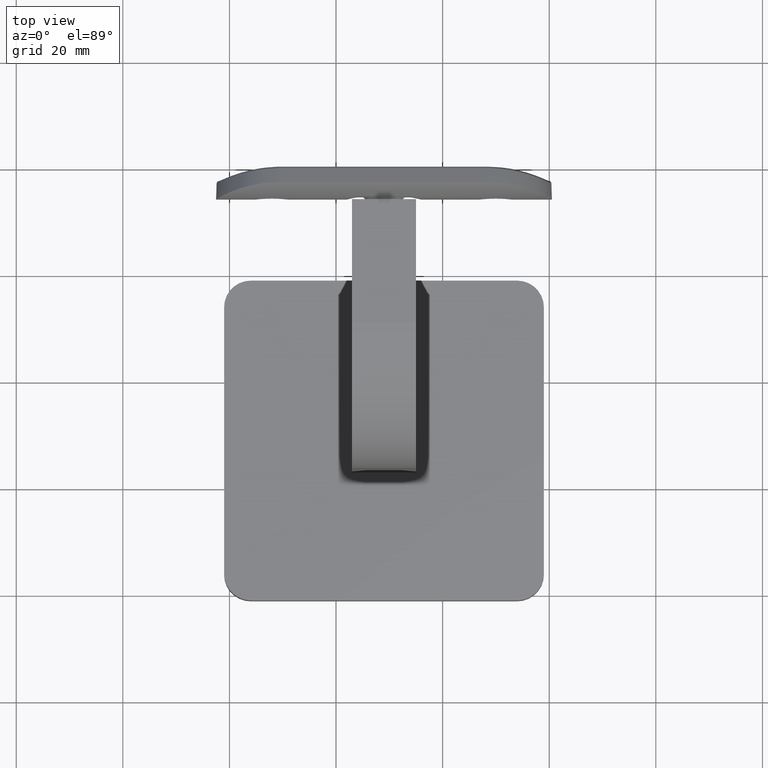
[diagram: clean part render]
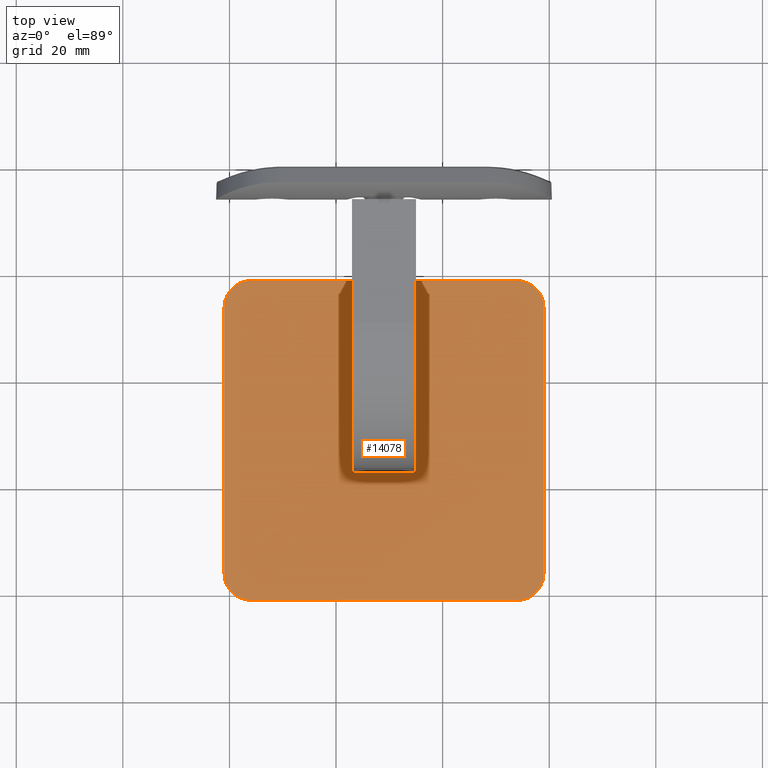
[diagram: same view with one face highlighted and labeled with its STEP entity id]
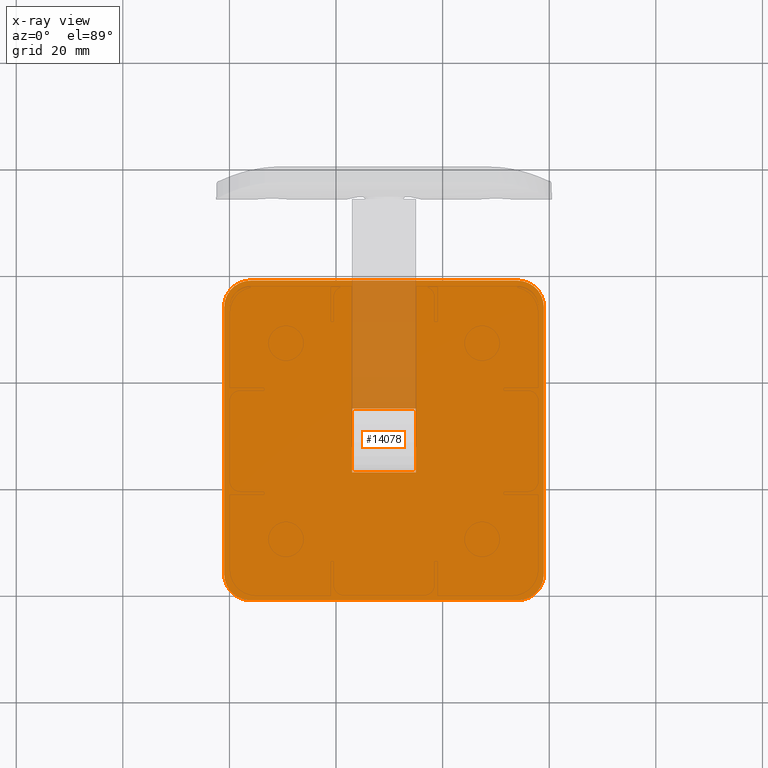
[diagram: x-ray of the same camera — body ghosted, the highlighted face saturated]
A machine part, top view. The second image highlights one B-rep face of the part: STEP entity #14078.
The next image is the same camera in x-ray: the body ghosted, the highlighted face saturated — about 8% of this face is hidden behind the body in this view.
In plain terms, the highlighted planar face has unit normal (0, 0, 1).
Its self-contained STEP definition (entity closure, byte-faithful):
#172 = DIRECTION ( 'NONE',  ( 0.000000000000000000, 1.000000000000000000, 0.000000000000000000 ) ) ;
#190 = VERTEX_POINT ( 'NONE', #6938 ) ;
#329 = VERTEX_POINT ( 'NONE', #8734 ) ;
#729 = CARTESIAN_POINT ( 'NONE',  ( 5.000000000000035527, 0.000000000000000000, 11.50000000000000000 ) ) ;
#973 = EDGE_CURVE ( 'NONE', #15392, #190, #7209, .T. ) ;
#1012 = CARTESIAN_POINT ( 'NONE',  ( 60.00000000000000000, 54.99999999999996447, 11.50000000000000000 ) ) ;
#1373 = VERTEX_POINT ( 'NONE', #13045 ) ;
#1382 = DIRECTION ( 'NONE',  ( -1.000000000000000000, -0.000000000000000000, -0.000000000000000000 ) ) ;
#1583 = VERTEX_POINT ( 'NONE', #5884 ) ;
#1748 = VERTEX_POINT ( 'NONE', #13150 ) ;
#1775 = ORIENTED_EDGE ( 'NONE', *, *, #973, .T. ) ;
#1865 = FACE_BOUND ( 'NONE', #14745, .T. ) ;
#1986 = CARTESIAN_POINT ( 'NONE',  ( 23.99999999999999645, 24.00000000000000000, 11.50000000000000000 ) ) ;
#2041 = ORIENTED_EDGE ( 'NONE', *, *, #6781, .T. ) ;
#2207 = ORIENTED_EDGE ( 'NONE', *, *, #10861, .F. ) ;
#2497 = AXIS2_PLACEMENT_3D ( 'NONE', #9636, #11306, #15967 ) ;
#2602 = CARTESIAN_POINT ( 'NONE',  ( 0.000000000000000000, 5.000000000000035527, 11.50000000000000000 ) ) ;
#2998 = CARTESIAN_POINT ( 'NONE',  ( 60.00000000000000000, 5.000000000000035527, 11.50000000000000000 ) ) ;
#3354 = EDGE_CURVE ( 'NONE', #4103, #329, #16791, .T. ) ;
#3788 = CARTESIAN_POINT ( 'NONE',  ( 54.99999999999996447, 8.673617379884035472E-16, 11.50000000000000000 ) ) ;
#3882 = ORIENTED_EDGE ( 'NONE', *, *, #11605, .T. ) ;
#3988 = CIRCLE ( 'NONE', #6378, 5.000000000000000000 ) ;
#4103 = VERTEX_POINT ( 'NONE', #1986 ) ;
#4399 = DIRECTION ( 'NONE',  ( 1.000000000000000000, -0.000000000000000000, -0.000000000000000000 ) ) ;
#4501 = CARTESIAN_POINT ( 'NONE',  ( 5.000000000000000000, 5.000000000000000000, 11.50000000000000000 ) ) ;
#5142 = ORIENTED_EDGE ( 'NONE', *, *, #8017, .T. ) ;
#5884 = CARTESIAN_POINT ( 'NONE',  ( 0.000000000000000000, 54.99999999999996447, 11.50000000000000000 ) ) ;
#5920 = PLANE ( 'NONE',  #9099 ) ;
#5930 = VERTEX_POINT ( 'NONE', #14109 ) ;
#6040 = EDGE_CURVE ( 'NONE', #14061, #5930, #19358, .T. ) ;
#6378 = AXIS2_PLACEMENT_3D ( 'NONE', #4501, #11002, #18823 ) ;
#6552 = ORIENTED_EDGE ( 'NONE', *, *, #3354, .F. ) ;
#6781 = EDGE_CURVE ( 'NONE', #5930, #8294, #11501, .T. ) ;
#6938 = CARTESIAN_POINT ( 'NONE',  ( 60.00000000000000000, 5.000000000000035527, 11.50000000000000000 ) ) ;
#7033 = DIRECTION ( 'NONE',  ( 1.000000000000000000, 0.000000000000000000, 0.000000000000000000 ) ) ;
#7209 = CIRCLE ( 'NONE', #16790, 4.999999999999997335 ) ;
#7242 = EDGE_CURVE ( 'NONE', #1748, #15392, #7986, .T. ) ;
#7378 = AXIS2_PLACEMENT_3D ( 'NONE', #7804, #17268, #9433 ) ;
#7395 = CARTESIAN_POINT ( 'NONE',  ( 23.99999999999999645, 36.00000000000000711, 11.50000000000000000 ) ) ;
#7446 = CARTESIAN_POINT ( 'NONE',  ( 5.000000000000000000, 5.000000000000000000, 11.50000000000000000 ) ) ;
#7804 = CARTESIAN_POINT ( 'NONE',  ( 5.000000000000000000, 55.00000000000000000, 11.50000000000000000 ) ) ;
#7986 = LINE ( 'NONE', #729, #17393 ) ;
#7991 = ORIENTED_EDGE ( 'NONE', *, *, #13580, .F. ) ;
#8017 = EDGE_CURVE ( 'NONE', #16636, #1748, #3988, .T. ) ;
#8194 = VECTOR ( 'NONE', #172, 1000.000000000000000 ) ;
#8294 = VERTEX_POINT ( 'NONE', #18958 ) ;
#8734 = CARTESIAN_POINT ( 'NONE',  ( 36.00000000000000000, 24.00000000000000000, 11.50000000000000000 ) ) ;
#8754 = CARTESIAN_POINT ( 'NONE',  ( 0.000000000000000000, 5.000000000000035527, 11.50000000000000000 ) ) ;
#8999 = CARTESIAN_POINT ( 'NONE',  ( 36.00000000000000000, 24.00000000000000000, 11.50000000000000000 ) ) ;
#9069 = CIRCLE ( 'NONE', #7378, 4.999999999999998224 ) ;
#9099 = AXIS2_PLACEMENT_3D ( 'NONE', #7446, #15265, #16989 ) ;
#9433 = DIRECTION ( 'NONE',  ( 1.000000000000000000, 0.000000000000000000, 0.000000000000000000 ) ) ;
#9636 = CARTESIAN_POINT ( 'NONE',  ( 55.00000000000000000, 55.00000000000000000, 11.50000000000000000 ) ) ;
#9830 = FACE_OUTER_BOUND ( 'NONE', #13142, .T. ) ;
#10180 = DIRECTION ( 'NONE',  ( -0.000000000000000000, -1.000000000000000000, -0.000000000000000000 ) ) ;
#10277 = CARTESIAN_POINT ( 'NONE',  ( 5.000000000000035527, 60.00000000000000000, 11.50000000000000000 ) ) ;
#10354 = LINE ( 'NONE', #10760, #15527 ) ;
#10760 = CARTESIAN_POINT ( 'NONE',  ( 23.99999999999999645, 36.00000000000000711, 11.50000000000000000 ) ) ;
#10861 = EDGE_CURVE ( 'NONE', #13562, #4103, #19268, .T. ) ;
#10914 = VECTOR ( 'NONE', #19048, 1000.000000000000000 ) ;
#10955 = CARTESIAN_POINT ( 'NONE',  ( 23.99999999999999645, 24.00000000000000000, 11.50000000000000000 ) ) ;
#11002 = DIRECTION ( 'NONE',  ( 0.000000000000000000, 0.000000000000000000, 1.000000000000000000 ) ) ;
#11306 = DIRECTION ( 'NONE',  ( 0.000000000000000000, 0.000000000000000000, 1.000000000000000000 ) ) ;
#11501 = LINE ( 'NONE', #10277, #17147 ) ;
#11605 = EDGE_CURVE ( 'NONE', #1583, #16636, #16051, .T. ) ;
#11868 = DIRECTION ( 'NONE',  ( -1.000000000000000000, -0.000000000000000000, -0.000000000000000000 ) ) ;
#11884 = VECTOR ( 'NONE', #10180, 1000.000000000000000 ) ;
#13045 = CARTESIAN_POINT ( 'NONE',  ( 36.00000000000000000, 36.00000000000000711, 11.50000000000000000 ) ) ;
#13084 = ORIENTED_EDGE ( 'NONE', *, *, #14184, .T. ) ;
#13142 = EDGE_LOOP ( 'NONE', ( #5142, #13886, #1775, #13084, #19279, #2041, #14692, #3882 ) ) ;
#13150 = CARTESIAN_POINT ( 'NONE',  ( 5.000000000000035527, 0.000000000000000000, 11.50000000000000000 ) ) ;
#13333 = CARTESIAN_POINT ( 'NONE',  ( 55.00000000000000000, 5.000000000000000000, 11.50000000000000000 ) ) ;
#13562 = VERTEX_POINT ( 'NONE', #7395 ) ;
#13580 = EDGE_CURVE ( 'NONE', #1373, #13562, #10354, .T. ) ;
#13886 = ORIENTED_EDGE ( 'NONE', *, *, #7242, .T. ) ;
#14061 = VERTEX_POINT ( 'NONE', #1012 ) ;
#14078 = ADVANCED_FACE ( 'NONE', ( #9830, #1865 ), #5920, .T. ) ;
#14109 = CARTESIAN_POINT ( 'NONE',  ( 54.99999999999996447, 60.00000000000000000, 11.50000000000000000 ) ) ;
#14184 = EDGE_CURVE ( 'NONE', #190, #14061, #20183, .T. ) ;
#14298 = DIRECTION ( 'NONE',  ( 0.000000000000000000, 1.000000000000000000, 0.000000000000000000 ) ) ;
#14692 = ORIENTED_EDGE ( 'NONE', *, *, #15981, .T. ) ;
#14745 = EDGE_LOOP ( 'NONE', ( #2207, #7991, #19710, #6552 ) ) ;
#14778 = DIRECTION ( 'NONE',  ( 0.000000000000000000, 0.000000000000000000, 1.000000000000000000 ) ) ;
#15265 = DIRECTION ( 'NONE',  ( 0.000000000000000000, 0.000000000000000000, 1.000000000000000000 ) ) ;
#15392 = VERTEX_POINT ( 'NONE', #3788 ) ;
#15527 = VECTOR ( 'NONE', #1382, 1000.000000000000000 ) ;
#15967 = DIRECTION ( 'NONE',  ( -1.000000000000000000, 0.000000000000000000, 0.000000000000000000 ) ) ;
#15981 = EDGE_CURVE ( 'NONE', #8294, #1583, #9069, .T. ) ;
#16051 = LINE ( 'NONE', #8754, #11884 ) ;
#16286 = DIRECTION ( 'NONE',  ( -1.000000000000000000, 0.000000000000000000, 0.000000000000000000 ) ) ;
#16366 = LINE ( 'NONE', #18857, #8194 ) ;
#16636 = VERTEX_POINT ( 'NONE', #2602 ) ;
#16790 = AXIS2_PLACEMENT_3D ( 'NONE', #13333, #14778, #16286 ) ;
#16791 = LINE ( 'NONE', #8999, #17298 ) ;
#16989 = DIRECTION ( 'NONE',  ( 1.000000000000000000, 0.000000000000000000, -0.000000000000000000 ) ) ;
#17147 = VECTOR ( 'NONE', #11868, 1000.000000000000000 ) ;
#17268 = DIRECTION ( 'NONE',  ( 0.000000000000000000, 0.000000000000000000, 1.000000000000000000 ) ) ;
#17298 = VECTOR ( 'NONE', #4399, 1000.000000000000000 ) ;
#17393 = VECTOR ( 'NONE', #7033, 1000.000000000000000 ) ;
#18192 = VECTOR ( 'NONE', #14298, 1000.000000000000000 ) ;
#18823 = DIRECTION ( 'NONE',  ( 1.000000000000000000, 0.000000000000000000, 0.000000000000000000 ) ) ;
#18857 = CARTESIAN_POINT ( 'NONE',  ( 36.00000000000000000, 24.00000000000000000, 11.50000000000000000 ) ) ;
#18958 = CARTESIAN_POINT ( 'NONE',  ( 5.000000000000035527, 60.00000000000000000, 11.50000000000000000 ) ) ;
#19048 = DIRECTION ( 'NONE',  ( -0.000000000000000000, -1.000000000000000000, -0.000000000000000000 ) ) ;
#19114 = EDGE_CURVE ( 'NONE', #329, #1373, #16366, .T. ) ;
#19268 = LINE ( 'NONE', #10955, #10914 ) ;
#19279 = ORIENTED_EDGE ( 'NONE', *, *, #6040, .T. ) ;
#19358 = CIRCLE ( 'NONE', #2497, 4.999999999999997335 ) ;
#19710 = ORIENTED_EDGE ( 'NONE', *, *, #19114, .F. ) ;
#20183 = LINE ( 'NONE', #2998, #18192 ) ;